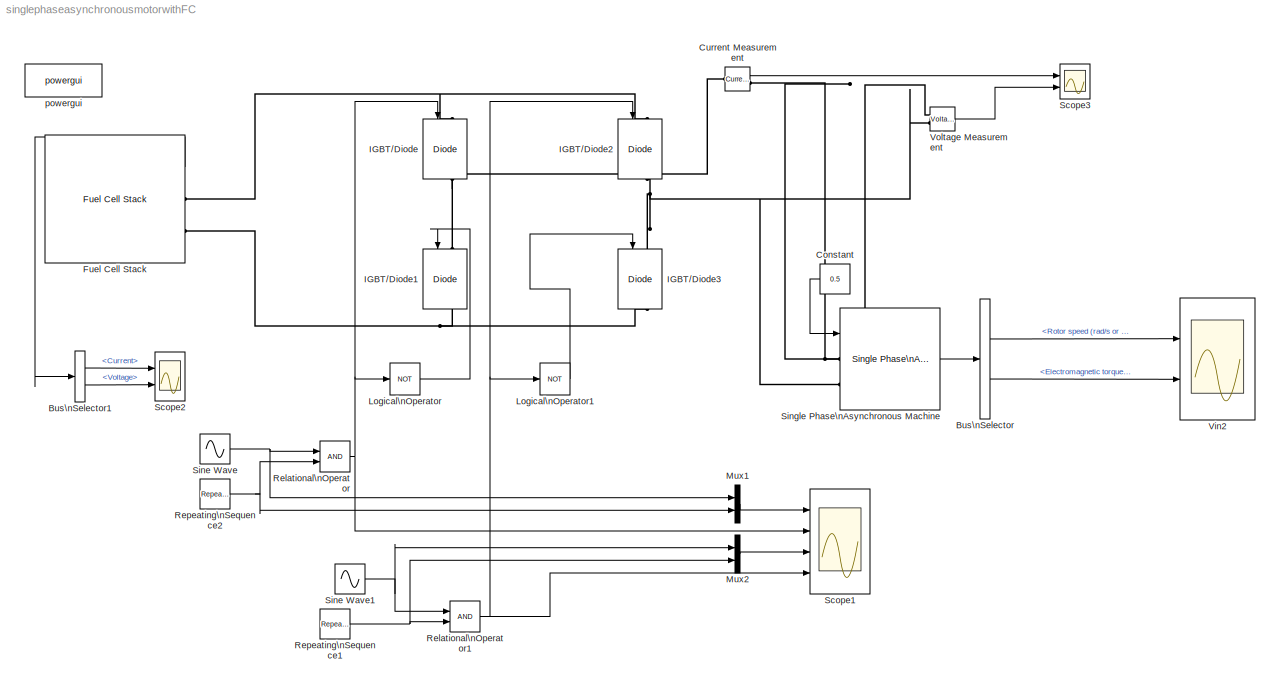
MODEL singlephaseasynchronousmotorwithFC
KIND model
BLOCK [BusSelector] Bus\nSelector
  OutputSignals = Mechanical.Rotor speed (rad/s or pu),Mechanical.Electromagnetic torque Te (N*m or pu)
  Ports = [1, 2]
BLOCK [BusSelector] Bus\nSelector1
  OutputSignals = Current,Voltage
  Ports = [1, 2]
BLOCK [Constant] Constant
  OutDataType = fixdt(1, 16)
  OutScaling = 2^0
  Value = 0.5
BLOCK [Reference] Current Measurement  REF=powerlib/Measurements/Current Measurement
  DialogController = POWERSYS.PowerSysDialog
  FunctionWithSeparateData = off
  OutputType = Complex
  PSBequivalent = 0
  PhasorSimulation = off
  Ports = [0, 1, 0, 0, 0, 1, 1]
  RTWMemSecDataConstants = Inherit from model
  RTWMemSecDataInternal = Inherit from model
  RTWMemSecDataParameters = Inherit from model
  RTWMemSecFuncExecute = Inherit from model
  RTWMemSecFuncInitTerm = Inherit from model
  ShowPortLabels = FromPortIcon
  SourceBlock = powerlib/Measurements/Current Measurement
  SourceType = Current Measurement
  SystemSampleTime = -1
BLOCK [Reference] Fuel Cell Stack  REF=electricdrivelib/Extra Sources/Fuel Cell Stack
  AirFr = 2400
  Comp = [99.95, 21, 1]
  Detailed = Simplified
  EndVI = [100, 20]
  Eoc = 35
  FCDyn = off
  FC_tau = 0
  FcType = Proton Exchange Membrane (PEM)
  FlowRateAir = off
  FlowRateH2 = off
  FunctionWithSeparateData = off
  Nc = 42
  NomVI = [52, 24.23]
  Ports = [0, 1, 0, 0, 0, 0, 2]
  PresetModel = PEMFC - 1.26 kW - 24 Vdc
  RTWMemSecDataConstants = Inherit from model
  RTWMemSecDataInternal = Inherit from model
  RTWMemSecDataParameters = Inherit from model
  RTWMemSecFuncExecute = Inherit from model
  RTWMemSecFuncInitTerm = Inherit from model
  ShowPortLabels = FromPortIcon
  SignX = off
  SignY = off
  SourceBlock = electricdrivelib/Extra Sources/Fuel Cell Stack
  SourceType = Fuel Cell Stack
  SuppPress = [1.5, 1]
  SystemPAir = off
  SystemPH2 = off
  SystemSampleTime = -1
  SystemTemp = off
  TOp = 55
  ViewParam = off
  n = 46
  plot_graph = off
BLOCK [Reference] IGBT//Diode  REF=powerlib/Power\nElectronics/IGBT//Diode
  Cs = inf
  DialogController = POWERSYS.PowerSysDialog
  FunctionWithSeparateData = off
  Measurements = on
  Ports = [1, 1, 0, 0, 0, 1, 1]
  RTWMemSecDataConstants = Inherit from model
  RTWMemSecDataInternal = Inherit from model
  RTWMemSecDataParameters = Inherit from model
  RTWMemSecFuncExecute = Inherit from model
  RTWMemSecFuncInitTerm = Inherit from model
  Ron = 1e-3
  Rs = 1e5
  ShowPortLabels = FromPortIcon
  SourceBlock = powerlib/Power\nElectronics/IGBT//Diode
  SourceType = IGBT/Diode
  SystemSampleTime = -1
BLOCK [Reference] IGBT//Diode1  REF=powerlib/Power\nElectronics/IGBT//Diode
  Cs = inf
  DialogController = POWERSYS.PowerSysDialog
  FunctionWithSeparateData = off
  Measurements = on
  Ports = [1, 1, 0, 0, 0, 1, 1]
  RTWMemSecDataConstants = Inherit from model
  RTWMemSecDataInternal = Inherit from model
  RTWMemSecDataParameters = Inherit from model
  RTWMemSecFuncExecute = Inherit from model
  RTWMemSecFuncInitTerm = Inherit from model
  Ron = 1e-3
  Rs = 1e5
  ShowPortLabels = FromPortIcon
  SourceBlock = powerlib/Power\nElectronics/IGBT//Diode
  SourceType = IGBT/Diode
  SystemSampleTime = -1
BLOCK [Reference] IGBT//Diode2  REF=powerlib/Power\nElectronics/IGBT//Diode
  Cs = inf
  DialogController = POWERSYS.PowerSysDialog
  FunctionWithSeparateData = off
  Measurements = on
  Ports = [1, 1, 0, 0, 0, 1, 1]
  RTWMemSecDataConstants = Inherit from model
  RTWMemSecDataInternal = Inherit from model
  RTWMemSecDataParameters = Inherit from model
  RTWMemSecFuncExecute = Inherit from model
  RTWMemSecFuncInitTerm = Inherit from model
  Ron = 1e-3
  Rs = 1e5
  ShowPortLabels = FromPortIcon
  SourceBlock = powerlib/Power\nElectronics/IGBT//Diode
  SourceType = IGBT/Diode
  SystemSampleTime = -1
BLOCK [Reference] IGBT//Diode3  REF=powerlib/Power\nElectronics/IGBT//Diode
  Cs = inf
  DialogController = POWERSYS.PowerSysDialog
  FunctionWithSeparateData = off
  Measurements = on
  Ports = [1, 1, 0, 0, 0, 1, 1]
  RTWMemSecDataConstants = Inherit from model
  RTWMemSecDataInternal = Inherit from model
  RTWMemSecDataParameters = Inherit from model
  RTWMemSecFuncExecute = Inherit from model
  RTWMemSecFuncInitTerm = Inherit from model
  Ron = 1e-3
  Rs = 1e5
  ShowPortLabels = FromPortIcon
  SourceBlock = powerlib/Power\nElectronics/IGBT//Diode
  SourceType = IGBT/Diode
  SystemSampleTime = -1
BLOCK [Logic] Logical\nOperator
  AllPortsSameDT = off
  Operator = NOT
  OutDataTypeMode = boolean
  OutDataTypeStr = boolean
  Ports = [1, 1]
BLOCK [Logic] Logical\nOperator1
  AllPortsSameDT = off
  Operator = NOT
  OutDataTypeMode = boolean
  OutDataTypeStr = boolean
  Ports = [1, 1]
BLOCK [Mux] Mux1
  DisplayOption = bar
  Inputs = 2
  Ports = [2, 1]
BLOCK [Mux] Mux2
  DisplayOption = bar
  Inputs = 2
  Ports = [2, 1]
BLOCK [RelationalOperator] Relational\nOperator
  InputSameDT = off
BLOCK [RelationalOperator] Relational\nOperator1
  InputSameDT = off
  LogicOutDataTypeMode = boolean
  OutDataTypeStr = boolean
BLOCK [Reference] Repeating\nSequence1  REF=simulink/Sources/Repeating\nSequence
  FunctionWithSeparateData = off
  Ports = [0, 1]
  RTWMemSecDataConstants = Inherit from model
  RTWMemSecDataInternal = Inherit from model
  RTWMemSecDataParameters = Inherit from model
  RTWMemSecFuncExecute = Inherit from model
  RTWMemSecFuncInitTerm = Inherit from model
  ShowPortLabels = FromPortIcon
  SourceBlock = simulink/Sources/Repeating\nSequence
  SourceType = Repeating table
  SystemSampleTime = -1
  rep_seq_t = [0 1/1500/4 3/1500/4 1/1500]
  rep_seq_y = [0 1 -1 0]
BLOCK [Reference] Repeating\nSequence2  REF=simulink/Sources/Repeating\nSequence
  FunctionWithSeparateData = off
  Ports = [0, 1]
  RTWMemSecDataConstants = Inherit from model
  RTWMemSecDataInternal = Inherit from model
  RTWMemSecDataParameters = Inherit from model
  RTWMemSecFuncExecute = Inherit from model
  RTWMemSecFuncInitTerm = Inherit from model
  ShowPortLabels = FromPortIcon
  SourceBlock = simulink/Sources/Repeating\nSequence
  SourceType = Repeating table
  SystemSampleTime = -1
  rep_seq_t = [0 1/1500/4 3/1500/4 1/1500]
  rep_seq_y = [0 1 -1 0]
BLOCK [Scope] Scope1
  DataFormat = StructureWithTime
  Floating = off
  LimitDataPoints = off
  NumInputPorts = 4
  Ports = [4]
  SampleTime = 0
  SaveName = ScopeData1
  TimeRange = 0.1322916666666668
  YMax = 1~1~1~1
  YMin = 0~0~0~0
  ZoomMode = xonly
BLOCK [Scope] Scope2
  DataFormat = StructureWithTime
  Floating = off
  NumInputPorts = 2
  Ports = [2]
  SampleTime = 0
  SaveName = ScopeData3
  YMax = 12.5~45000
  YMin = -12.5~-45000
  ZoomMode = xonly
BLOCK [Scope] Scope3
  DataFormat = StructureWithTime
  Floating = off
  LimitDataPoints = off
  NumInputPorts = 2
  Ports = [2]
  SampleTime = 0
  SaveToWorkspace = on
  YMax = 12.5~45000
  YMin = -12.5~-45000
  ZoomMode = yonly
BLOCK [Sin] Sine Wave
  Amplitude = 1
  Bias = 0
  Frequency = 2*pi*50
  Offset = 0
  Phase = 0
  Ports = [0, 1]
  SampleTime = 50e-6
  Samples = 10
BLOCK [Sin] Sine Wave1
  Amplitude = 1
  Bias = 0
  Frequency = 2*pi*50
  Offset = 0
  Phase = pi
  Ports = [0, 1]
  SampleTime = 50e-6
  Samples = 10
BLOCK [Reference] Single Phase\nAsynchronous Machine  REF=powerlib/Machines/Single Phase\nAsynchronous Machine
  AuxiliaryWinding = [7.14  8.5e-3]
  CapacitorRun = [18  21.1e-6]
  CapacitorStart = [2  254.7e-6]
  DataType = SI
  DialogController = POWERSYS.PowerSysDialog
  DisconnectionSpeed = 75
  FunctionWithSeparateData = off
  InitialSpeed = 0
  MachineType = Capacitor-Start
  MainWindingRotor = [4.12  5.6e-3]
  MainWindingStator = [2.02  7.4e-3]
  Mechanical = [0.0146  0  2 1.18]
  MutualInductance = 0.1772
  NominalParameters = [ .25*746  110  50]
  Ports = [1, 1, 0, 0, 0, 2]
  RTWMemSecDataConstants = Inherit from model
  RTWMemSecDataInternal = Inherit from model
  RTWMemSecDataParameters = Inherit from model
  RTWMemSecFuncExecute = Inherit from model
  RTWMemSecFuncInitTerm = Inherit from model
  ShowPortLabels = FromPortIcon
  SourceBlock = powerlib/Machines/Single Phase\nAsynchronous Machine
  SourceType = Single Phase Asynchronous Machine
  SystemSampleTime = -1
  TsBlock = -1
  TsPowergui = 0
  UNITS = SI
BLOCK [Scope] Vin2
  DataFormat = StructureWithTime
  Floating = off
  LimitDataPoints = off
  NumInputPorts = 2
  Ports = [2]
  SampleTime = 0
  SaveName = ScopeData2
  SaveToWorkspace = on
  YMax = 170~5
  YMin = 0~-5
  ZoomMode = xonly
BLOCK [Reference] Voltage Measurement  REF=powerlib/Measurements/Voltage Measurement
  DialogController = POWERSYS.PowerSysDialog
  FunctionWithSeparateData = off
  OutputType = Complex
  PSBequivalent = 0
  PhasorSimulation = off
  Ports = [0, 1, 0, 0, 0, 2]
  RTWMemSecDataConstants = Inherit from model
  RTWMemSecDataInternal = Inherit from model
  RTWMemSecDataParameters = Inherit from model
  RTWMemSecFuncExecute = Inherit from model
  RTWMemSecFuncInitTerm = Inherit from model
  ShowPortLabels = FromPortIcon
  SourceBlock = powerlib/Measurements/Voltage Measurement
  SourceType = Voltage Measurement
  SystemSampleTime = -1
BLOCK [Reference] powergui  REF=powerlib/powergui
  DisableRonSwitches = off
  DisableSnubberDevices = off
  DisableVfSwitches = off
  DisplayEquations = off
  DisplayStyle = 4
  EnableUseOfTLC = off
  Frange = [0:2:500]
  FreqAxis = on
  FunctionMessages = off
  FunctionWithSeparateData = off
  HookPort = off
  Interpol = off
  MaxFrequency = 1000
  Ports = []
  RTWMemSecDataConstants = Inherit from model
  RTWMemSecDataInternal = Inherit from model
  RTWMemSecDataParameters = Inherit from model
  RTWMemSecFuncExecute = Inherit from model
  RTWMemSecFuncInitTerm = Inherit from model
  RestoreLinks = warning
  RmsSteady = 1
  SPID = off
  SampleTime = 1e-6
  ShowGrid = off
  ShowPortLabels = FromPortIcon
  SourceBlock = powerlib/powergui
  SourceType = PSB option menu block
  StartTime = 0.0
  SwTol = 0
  SystemSampleTime = -1
  Ts = 0
  UserData = DataTag0
  UserDataPersistent = on
  Xlog = on
  Ylog = off
  ZoomFFT = off
  cycles = 3
  display = off
  echomessages = off
  frequency = 60
  frequencyindice = 0
  frequencyindicesteady = 1
  fundamental = 50
  methode = off
  save = off
  structure = ScopeData2
  variable = ZData
  x0status = blocks
LINE Bus\nSelector1:1 -> Scope2:1
LINE Bus\nSelector1:2 -> Scope2:2
LINE Bus\nSelector:1 -> Vin2:1
LINE Bus\nSelector:2 -> Vin2:2
LINE Constant:1 -> Single Phase\nAsynchronous Machine:1
LINE Current Measurement:1 -> Scope3:1
LINE Fuel Cell Stack:1 -> Bus\nSelector1:1
LINE Logical\nOperator1:1 -> IGBT//Diode3:1
LINE Logical\nOperator:1 -> IGBT//Diode1:1
LINE Mux1:1 -> Scope1:1
LINE Mux2:1 -> Scope1:3
NET Relational\nOperator1:1 -> IGBT//Diode2:1, Logical\nOperator1:1, Scope1:4
NET Relational\nOperator:1 -> IGBT//Diode:1, Logical\nOperator:1, Scope1:2
NET Repeating\nSequence1:1 -> Mux2:2, Relational\nOperator1:2
NET Repeating\nSequence2:1 -> Mux1:2, Relational\nOperator:2
NET Sine Wave1:1 -> Mux2:1, Relational\nOperator1:1
NET Sine Wave:1 -> Mux1:1, Relational\nOperator:1
LINE Single Phase\nAsynchronous Machine:1 -> Bus\nSelector:1
LINE Voltage Measurement:1 -> Scope3:2
PNET net1: Current Measurement:LConn1 -- IGBT//Diode1:LConn1 -- IGBT//Diode:RConn1
PNET net2: Current Measurement:RConn1 -- Single Phase\nAsynchronous Machine:LConn1 -- Voltage Measurement:LConn1
PNET net3: Fuel Cell Stack:RConn1 -- IGBT//Diode2:LConn1 -- IGBT//Diode:LConn1
PNET net4: Fuel Cell Stack:RConn2 -- IGBT//Diode1:RConn1 -- IGBT//Diode3:RConn1
PNET net5: IGBT//Diode2:RConn1 -- IGBT//Diode3:LConn1 -- Single Phase\nAsynchronous Machine:LConn2 -- Voltage Measurement:LConn2
note: NET lines group one-source signal fan-out (src -> all destinations, sorted); 1:1 wires keep LINE; PNET lines group multi-terminal physical nets as a canonical sorted terminal list (undirected conserving connections); 2-terminal nets keep the pairwise PLINE form
